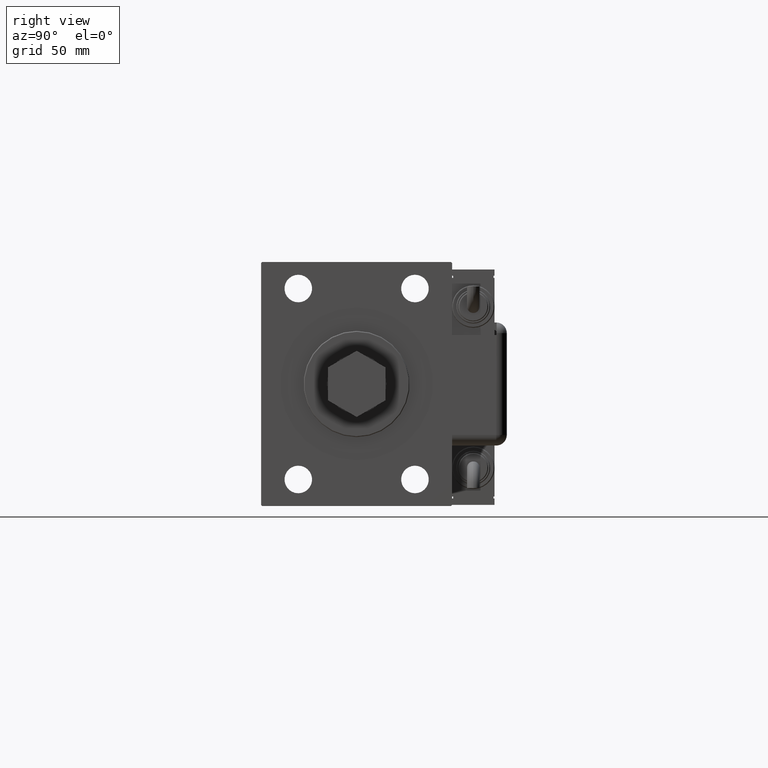
[diagram: clean part render]
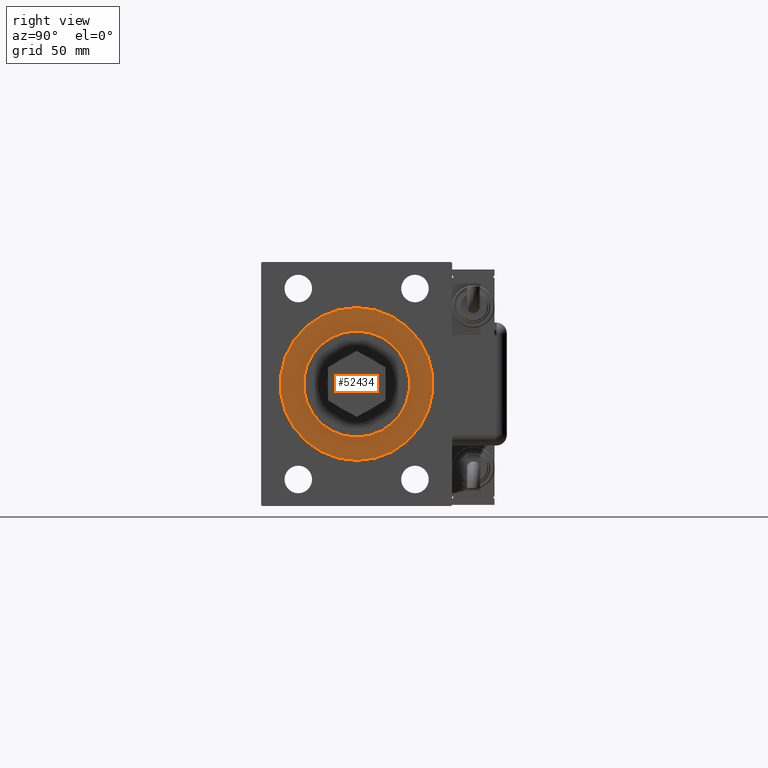
[diagram: same view with one face highlighted and labeled with its STEP entity id]
A machine part, right view. The second image highlights one B-rep face of the part: STEP entity #52434.
In plain terms, the highlighted planar face has unit normal (1, 0, 0).
Its self-contained STEP definition (entity closure, byte-faithful):
#1272 = CIRCLE ( 'NONE', #44730, 36.00000000000000000 ) ;
#2213 = PLANE ( 'NONE',  #15982 ) ;
#2522 = DIRECTION ( 'NONE',  ( 0.000000000000000000, 0.000000000000000000, -1.000000000000000000 ) ) ;
#5087 = VERTEX_POINT ( 'NONE', #41029 ) ;
#5216 = DIRECTION ( 'NONE',  ( 1.000000000000000000, 0.000000000000000000, 0.000000000000000000 ) ) ;
#6684 = EDGE_CURVE ( 'NONE', #5087, #58299, #53892, .T. ) ;
#9931 = EDGE_CURVE ( 'NONE', #58299, #5087, #41223, .T. ) ;
#11471 = DIRECTION ( 'NONE',  ( 1.000000000000000000, 0.000000000000000000, 0.000000000000000000 ) ) ;
#15982 = AXIS2_PLACEMENT_3D ( 'NONE', #53825, #11471, #26317 ) ;
#17620 = EDGE_LOOP ( 'NONE', ( #43041, #51719 ) ) ;
#17821 = DIRECTION ( 'NONE',  ( 0.000000000000000000, 0.000000000000000000, -1.000000000000000000 ) ) ;
#18678 = EDGE_CURVE ( 'NONE', #46442, #60869, #1272, .T. ) ;
#20071 = DIRECTION ( 'NONE',  ( 0.000000000000000000, 0.000000000000000000, -1.000000000000000000 ) ) ;
#20379 = DIRECTION ( 'NONE',  ( 1.000000000000000000, 0.000000000000000000, 0.000000000000000000 ) ) ;
#21760 = ORIENTED_EDGE ( 'NONE', *, *, #50996, .T. ) ;
#24706 = CARTESIAN_POINT ( 'NONE',  ( 118.7000000000000028, 0.000000000000000000, 0.000000000000000000 ) ) ;
#26317 = DIRECTION ( 'NONE',  ( 0.000000000000000000, 0.000000000000000000, -1.000000000000000000 ) ) ;
#26375 = CARTESIAN_POINT ( 'NONE',  ( 118.7000000000000028, 3.061616997868383043E-15, -25.00000000000000000 ) ) ;
#26395 = AXIS2_PLACEMENT_3D ( 'NONE', #48487, #5216, #37714 ) ;
#29195 = AXIS2_PLACEMENT_3D ( 'NONE', #24706, #20379, #20071 ) ;
#29775 = CIRCLE ( 'NONE', #51486, 36.00000000000000000 ) ;
#30057 = DIRECTION ( 'NONE',  ( 1.000000000000000000, 0.000000000000000000, 0.000000000000000000 ) ) ;
#30507 = EDGE_LOOP ( 'NONE', ( #48841, #21760 ) ) ;
#32040 = DIRECTION ( 'NONE',  ( 1.000000000000000000, 0.000000000000000000, 0.000000000000000000 ) ) ;
#37714 = DIRECTION ( 'NONE',  ( 0.000000000000000000, 0.000000000000000000, -1.000000000000000000 ) ) ;
#41029 = CARTESIAN_POINT ( 'NONE',  ( 118.7000000000000028, 0.000000000000000000, 25.00000000000000000 ) ) ;
#41223 = CIRCLE ( 'NONE', #26395, 25.00000000000000000 ) ;
#43040 = CARTESIAN_POINT ( 'NONE',  ( 118.7000000000000028, 0.000000000000000000, -36.00000000000000000 ) ) ;
#43041 = ORIENTED_EDGE ( 'NONE', *, *, #6684, .F. ) ;
#44559 = FACE_OUTER_BOUND ( 'NONE', #30507, .T. ) ;
#44730 = AXIS2_PLACEMENT_3D ( 'NONE', #58618, #32040, #17821 ) ;
#45169 = FACE_BOUND ( 'NONE', #17620, .T. ) ;
#46442 = VERTEX_POINT ( 'NONE', #43040 ) ;
#48487 = CARTESIAN_POINT ( 'NONE',  ( 118.7000000000000028, 0.000000000000000000, 0.000000000000000000 ) ) ;
#48841 = ORIENTED_EDGE ( 'NONE', *, *, #18678, .T. ) ;
#50996 = EDGE_CURVE ( 'NONE', #60869, #46442, #29775, .T. ) ;
#51486 = AXIS2_PLACEMENT_3D ( 'NONE', #55052, #30057, #2522 ) ;
#51719 = ORIENTED_EDGE ( 'NONE', *, *, #9931, .F. ) ;
#52434 = ADVANCED_FACE ( 'NONE', ( #45169, #44559 ), #2213, .T. ) ;
#53825 = CARTESIAN_POINT ( 'NONE',  ( 118.7000000000000028, 0.000000000000000000, 0.000000000000000000 ) ) ;
#53892 = CIRCLE ( 'NONE', #29195, 25.00000000000000000 ) ;
#55052 = CARTESIAN_POINT ( 'NONE',  ( 118.7000000000000028, 0.000000000000000000, 0.000000000000000000 ) ) ;
#56818 = CARTESIAN_POINT ( 'NONE',  ( 118.7000000000000028, 4.408728476930470856E-15, 36.00000000000000000 ) ) ;
#58299 = VERTEX_POINT ( 'NONE', #26375 ) ;
#58618 = CARTESIAN_POINT ( 'NONE',  ( 118.7000000000000028, 0.000000000000000000, 0.000000000000000000 ) ) ;
#60869 = VERTEX_POINT ( 'NONE', #56818 ) ;